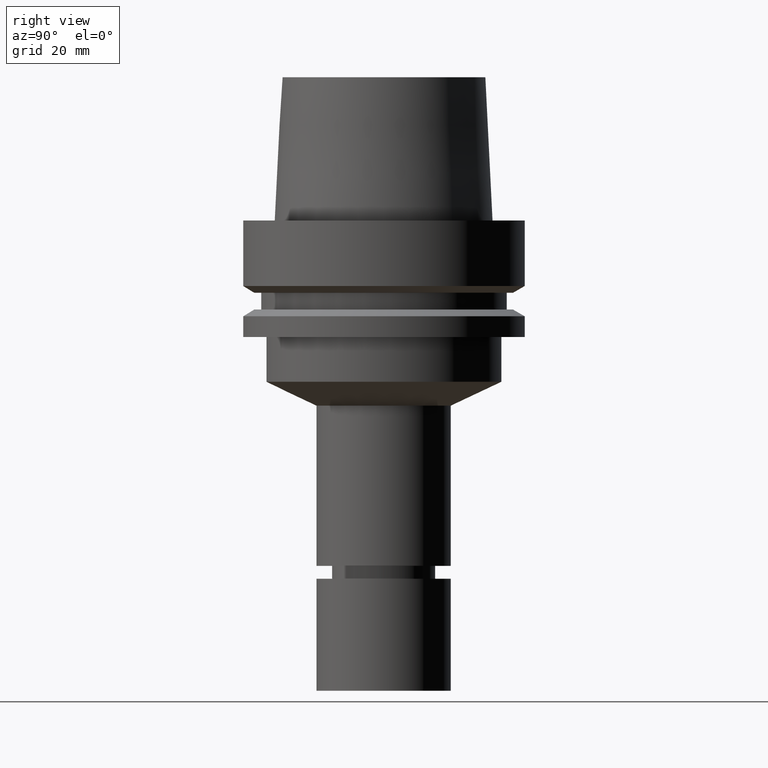
[diagram: clean part render]
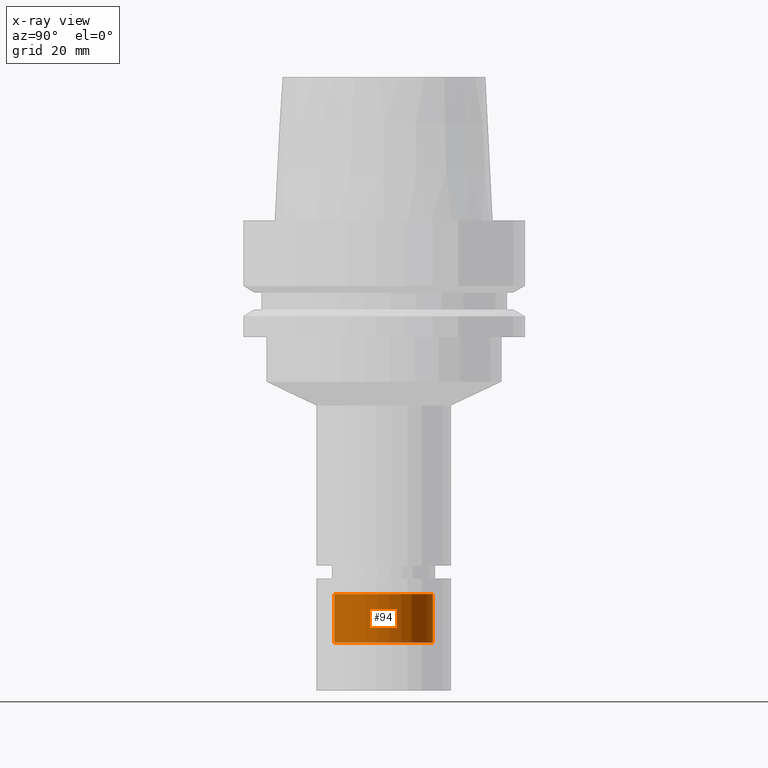
[diagram: x-ray — body ghosted, one internal face saturated and labeled with its STEP entity id]
A machine part, right view, then the same camera in x-ray: the body is ghosted and one INTERNAL B-rep face — a face not visible from any outside direction — is saturated and labeled: STEP entity #94.
In plain terms, the highlighted cylindrical surface (bore or boss wall) has radius 11 mm, axis along (-0, -0, 1).
Its self-contained STEP definition (entity closure, byte-faithful):
#94=ADVANCED_FACE('Unnamed[1]',(#238,#239),#240,.T.);
#96=EDGE_CURVE('Unnamed[1]',#242,#242,#243,.T.);
#144=EDGE_CURVE('Unnamed[1]',#312,#312,#313,.T.);
#238=FACE_BOUND('',#436,.T.);
#239=FACE_BOUND('',#437,.T.);
#240=CYLINDRICAL_SURFACE('',#438,11.0000000000001);
#242=VERTEX_POINT('',#441);
#243=CIRCLE('',#442,10.9999999999999);
#312=VERTEX_POINT('',#528);
#313=CIRCLE('',#529,11.0000000000003);
#436=EDGE_LOOP('',(#655));
#437=EDGE_LOOP('',(#656));
#438=AXIS2_PLACEMENT_3D('',#657,#658,#659);
#441=CARTESIAN_POINT('',(5.10867168763577E-015,10.9999999999999,-83.4309401076723));
#442=AXIS2_PLACEMENT_3D('',#660,#661,#662);
#528=CARTESIAN_POINT('',(5.77388782763889E-015,11.0000000000003,-94.2947441116719));
#529=AXIS2_PLACEMENT_3D('',#734,#735,#736);
#655=ORIENTED_EDGE('',*,*,#96,.F.);
#656=ORIENTED_EDGE('',*,*,#144,.T.);
#657=CARTESIAN_POINT('',(5.44127975763733E-015,1.08825595152747E-014,-88.8628421096721));
#658=DIRECTION('',(-6.12323399573676E-017,-1.22464679914735E-016,1.0));
#659=DIRECTION('',(-1.23259516440783E-032,1.0,1.22464679914735E-016));
#660=CARTESIAN_POINT('',(5.10867168763577E-015,1.02173433752715E-014,-83.4309401076723));
#661=DIRECTION('',(-6.12323399573677E-017,-1.22464679914735E-016,1.0));
#662=DIRECTION('',(-1.23259516440783E-032,1.0,1.22464679914735E-016));
#734=CARTESIAN_POINT('',(5.77388782763889E-015,1.15477756552778E-014,-94.2947441116719));
#735=DIRECTION('',(-6.12323399573676E-017,-1.22464679914735E-016,1.0));
#736=DIRECTION('',(-1.23259516440783E-032,1.0,1.22464679914735E-016));